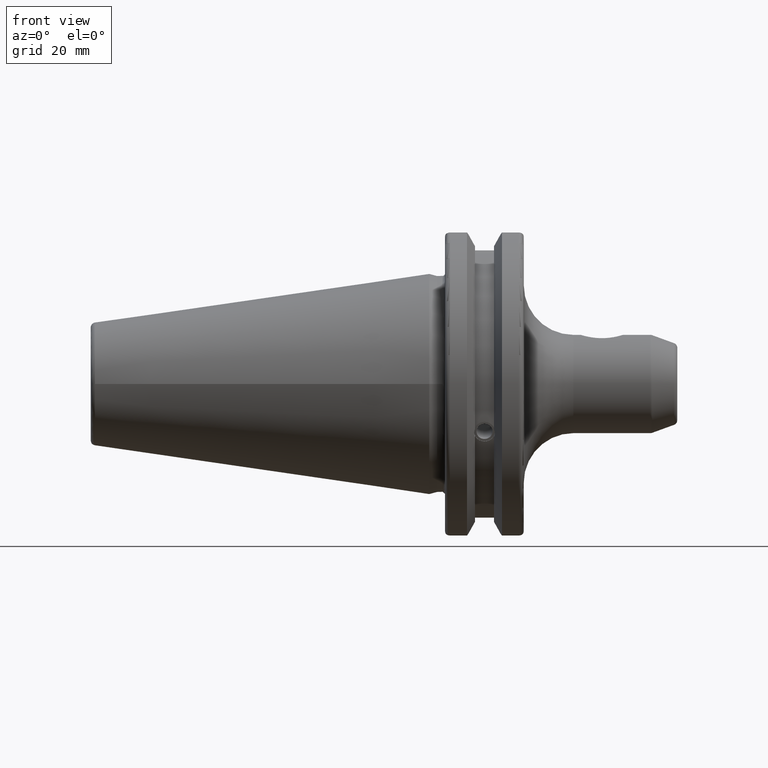
[diagram: clean part render]
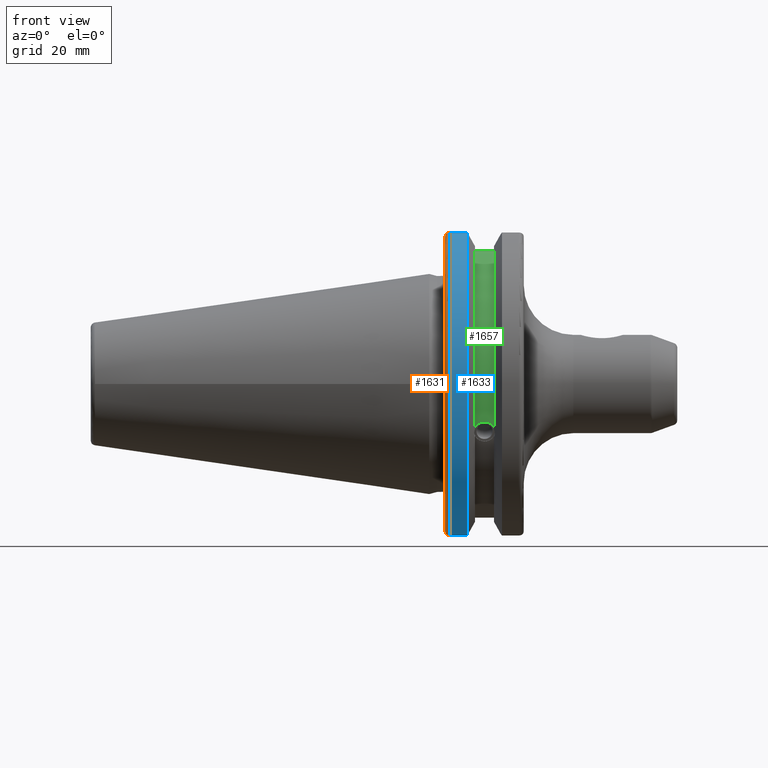
[diagram: same view with three faces highlighted in distinct colors, each labeled with its STEP entity id]
A machine part, front view with three faces highlighted in distinct colors.
Their STEP definitions:

[orange] entity #1631 — the highlighted toroidal blend (fillet) surface has major radius 30.75 mm and minor (blend) radius 1 mm.
#37=TOROIDAL_SURFACE('',#1818,30.75,1.);
#159=CIRCLE('',#1806,30.75);
#164=CIRCLE('',#1819,31.75);
#238=FACE_OUTER_BOUND('',#346,.T.);
#346=EDGE_LOOP('',(#1379,#1380,#1381,#1382,#1383,#1384));
#418=B_SPLINE_CURVE_WITH_KNOTS('',3,(#3129,#3130,#3131,#3132,#3133,#3134),
 .UNSPECIFIED.,.F.,.F.,(4,2,4),(0.0977210450333167,0.111963554372601,0.150804064902975),
 .UNSPECIFIED.);
#419=B_SPLINE_CURVE_WITH_KNOTS('',3,(#3155,#3156,#3157,#3158,#3159,#3160),
 .UNSPECIFIED.,.F.,.F.,(4,2,4),(0.452741154494498,0.491581665024872,0.505824174364157),
 .UNSPECIFIED.);
#420=B_SPLINE_CURVE_WITH_KNOTS('',3,(#3164,#3165,#3166,#3167,#3168,#3169,
#3170,#3171),.UNSPECIFIED.,.F.,.F.,(4,2,2,4),(-0.104180282751877,-0.0729784742461442,
-0.0343524753874977,0.),.UNSPECIFIED.);
#421=B_SPLINE_CURVE_WITH_KNOTS('',3,(#3174,#3175,#3176,#3177,#3178,#3179,
#3180,#3181),.UNSPECIFIED.,.F.,.F.,(4,2,2,4),(0.,0.0343524753874981,0.0729784742461436,
0.104180282751876),.UNSPECIFIED.);
#752=VERTEX_POINT('',#3009);
#753=VERTEX_POINT('',#3010);
#776=VERTEX_POINT('',#3128);
#782=VERTEX_POINT('',#3153);
#783=VERTEX_POINT('',#3163);
#784=VERTEX_POINT('',#3172);
#956=EDGE_CURVE('',#752,#753,#159,.T.);
#988=EDGE_CURVE('',#776,#752,#418,.T.);
#998=EDGE_CURVE('',#753,#782,#419,.T.);
#1000=EDGE_CURVE('',#782,#783,#420,.T.);
#1001=EDGE_CURVE('',#783,#784,#164,.T.);
#1002=EDGE_CURVE('',#784,#776,#421,.T.);
#1379=ORIENTED_EDGE('',*,*,#1000,.T.);
#1380=ORIENTED_EDGE('',*,*,#1001,.T.);
#1381=ORIENTED_EDGE('',*,*,#1002,.T.);
#1382=ORIENTED_EDGE('',*,*,#988,.T.);
#1383=ORIENTED_EDGE('',*,*,#956,.T.);
#1384=ORIENTED_EDGE('',*,*,#998,.T.);
#1631=ADVANCED_FACE('',(#238),#37,.T.);
#1806=AXIS2_PLACEMENT_3D('',#3011,#2159,#2160);
#1818=AXIS2_PLACEMENT_3D('',#3162,#2207,#2208);
#1819=AXIS2_PLACEMENT_3D('',#3173,#2209,#2210);
#2159=DIRECTION('center_axis',(1.,0.,0.));
#2160=DIRECTION('ref_axis',(0.,-1.,1.60812264967664E-16));
#2207=DIRECTION('center_axis',(1.,0.,0.));
#2208=DIRECTION('ref_axis',(0.,0.,-1.));
#2209=DIRECTION('center_axis',(-1.,0.,0.));
#2210=DIRECTION('ref_axis',(0.,-1.,1.60812264967664E-16));
#3009=CARTESIAN_POINT('',(3.175,-8.18999999999999,29.6392712461019));
#3010=CARTESIAN_POINT('',(3.175,-8.19,-29.6392712461019));
#3011=CARTESIAN_POINT('Origin',(3.175,0.,0.));
#3128=CARTESIAN_POINT('',(3.31912772509028,-8.19,30.1755016258903));
#3129=CARTESIAN_POINT('Ctrl Pts',(3.31912772509028,-8.19,30.1755016258903));
#3130=CARTESIAN_POINT('Ctrl Pts',(3.29318362718666,-8.19,30.131014531546));
#3131=CARTESIAN_POINT('Ctrl Pts',(3.27103565282437,-8.19,30.0852355256475));
#3132=CARTESIAN_POINT('Ctrl Pts',(3.20451443291695,-8.19,29.9212724384851));
#3133=CARTESIAN_POINT('Ctrl Pts',(3.175,-8.19,29.7687396145364));
#3134=CARTESIAN_POINT('Ctrl Pts',(3.175,-8.19,29.6392712461019));
#3153=CARTESIAN_POINT('',(3.31912772509028,-8.19,-30.1755016258903));
#3155=CARTESIAN_POINT('Ctrl Pts',(3.175,-8.19,-29.6392712461018));
#3156=CARTESIAN_POINT('Ctrl Pts',(3.175,-8.19,-29.7687396145364));
#3157=CARTESIAN_POINT('Ctrl Pts',(3.20451443291695,-8.19,-29.9212724384851));
#3158=CARTESIAN_POINT('Ctrl Pts',(3.27103565282437,-8.19,-30.0852355256475));
#3159=CARTESIAN_POINT('Ctrl Pts',(3.29318362718666,-8.19,-30.131014531546));
#3160=CARTESIAN_POINT('Ctrl Pts',(3.31912772509028,-8.19,-30.1755016258903));
#3162=CARTESIAN_POINT('Origin',(4.175,0.,0.));
#3163=CARTESIAN_POINT('',(4.175,-8.67204822802685,-30.5427254764662));
#3164=CARTESIAN_POINT('Ctrl Pts',(3.31912772509028,-8.19,-30.1755016258903));
#3165=CARTESIAN_POINT('Ctrl Pts',(3.36755369570113,-8.27036828330781,-30.2367261024977));
#3166=CARTESIAN_POINT('Ctrl Pts',(3.43232973376814,-8.34909446036477,-30.2966996242308));
#3167=CARTESIAN_POINT('Ctrl Pts',(3.58532758094931,-8.48862804755884,-30.4029961692546));
#3168=CARTESIAN_POINT('Ctrl Pts',(3.70655857052286,-8.56482138642532,-30.4610401774263));
#3169=CARTESIAN_POINT('Ctrl Pts',(3.92668295662254,-8.6471881193939,-30.5237870709558));
#3170=CARTESIAN_POINT('Ctrl Pts',(4.06049174870834,-8.67204822802686,-30.5427254764662));
#3171=CARTESIAN_POINT('Ctrl Pts',(4.175,-8.67204822802686,-30.5427254764662));
#3172=CARTESIAN_POINT('',(4.175,-8.67204822802685,30.5427254764662));
#3173=CARTESIAN_POINT('Origin',(4.175,0.,0.));
#3174=CARTESIAN_POINT('Ctrl Pts',(4.175,-8.67204822802686,30.5427254764662));
#3175=CARTESIAN_POINT('Ctrl Pts',(4.06049174870834,-8.67204822802686,30.5427254764662));
#3176=CARTESIAN_POINT('Ctrl Pts',(3.92668295662254,-8.64718811939389,30.5237870709558));
#3177=CARTESIAN_POINT('Ctrl Pts',(3.70655857052286,-8.56482138642532,30.4610401774263));
#3178=CARTESIAN_POINT('Ctrl Pts',(3.58532758094931,-8.48862804755884,30.4029961692546));
#3179=CARTESIAN_POINT('Ctrl Pts',(3.43232973376814,-8.34909446036478,30.2966996242308));
#3180=CARTESIAN_POINT('Ctrl Pts',(3.36755369570113,-8.2703682833078,30.2367261024977));
#3181=CARTESIAN_POINT('Ctrl Pts',(3.31912772509028,-8.19,30.1755016258903));

[blue] entity #1633 — the highlighted cylindrical surface (partial cylindrical patch) has radius 31.75 mm, axis along (1, 0, 0).
#164=CIRCLE('',#1819,31.75);
#165=CIRCLE('',#1822,31.75);
#240=FACE_OUTER_BOUND('',#348,.T.);
#348=EDGE_LOOP('',(#1389,#1390,#1391,#1392));
#501=LINE('',#3184,#600);
#502=LINE('',#3190,#601);
#600=VECTOR('',#2213,10.);
#601=VECTOR('',#2216,10.);
#783=VERTEX_POINT('',#3163);
#784=VERTEX_POINT('',#3172);
#785=VERTEX_POINT('',#3183);
#786=VERTEX_POINT('',#3189);
#1001=EDGE_CURVE('',#783,#784,#164,.T.);
#1003=EDGE_CURVE('',#784,#785,#501,.T.);
#1005=EDGE_CURVE('',#786,#783,#502,.T.);
#1006=EDGE_CURVE('',#785,#786,#165,.T.);
#1389=ORIENTED_EDGE('',*,*,#1001,.F.);
#1390=ORIENTED_EDGE('',*,*,#1005,.F.);
#1391=ORIENTED_EDGE('',*,*,#1006,.F.);
#1392=ORIENTED_EDGE('',*,*,#1003,.F.);
#1569=CYLINDRICAL_SURFACE('',#1821,31.75);
#1633=ADVANCED_FACE('',(#240),#1569,.T.);
#1819=AXIS2_PLACEMENT_3D('',#3173,#2209,#2210);
#1821=AXIS2_PLACEMENT_3D('',#3188,#2214,#2215);
#1822=AXIS2_PLACEMENT_3D('',#3191,#2217,#2218);
#2209=DIRECTION('center_axis',(-1.,0.,0.));
#2210=DIRECTION('ref_axis',(0.,-1.,1.60812264967664E-16));
#2213=DIRECTION('',(1.,0.,0.));
#2214=DIRECTION('center_axis',(1.,0.,0.));
#2215=DIRECTION('ref_axis',(0.,-1.,1.22464679914735E-16));
#2216=DIRECTION('',(-1.,0.,0.));
#2217=DIRECTION('center_axis',(1.,0.,0.));
#2218=DIRECTION('ref_axis',(0.,0.,-1.));
#3163=CARTESIAN_POINT('',(4.175,-8.67204822802685,-30.5427254764662));
#3172=CARTESIAN_POINT('',(4.175,-8.67204822802685,30.5427254764662));
#3173=CARTESIAN_POINT('Origin',(4.175,0.,0.));
#3183=CARTESIAN_POINT('',(7.60793323092436,-8.67204822802685,30.5427254764662));
#3184=CARTESIAN_POINT('',(5.39146661546218,-8.67204822802685,30.5427254764662));
#3188=CARTESIAN_POINT('Origin',(5.39146661546218,0.,0.));
#3189=CARTESIAN_POINT('',(7.60793323092436,-8.67204822802685,-30.5427254764662));
#3190=CARTESIAN_POINT('',(5.39146661546218,-8.67204822802685,-30.5427254764662));
#3191=CARTESIAN_POINT('Origin',(7.60793323092436,0.,0.));

[green] entity #1657 — the highlighted cylindrical surface (partial cylindrical patch) has radius 28.15 mm, axis along (1, 0, 0).
#178=CIRCLE('',#1859,28.15);
#179=CIRCLE('',#1860,28.15);
#264=FACE_OUTER_BOUND('',#373,.T.);
#373=EDGE_LOOP('',(#1494,#1495,#1496,#1497));
#400=B_SPLINE_CURVE_WITH_KNOTS('',3,(#2743,#2744,#2745,#2746,#2747,#2748,
#2749,#2750,#2751,#2752,#2753,#2754,#2755,#2756),.UNSPECIFIED.,.F.,.F.,
(4,2,2,2,2,2,4),(0.401639126382403,0.474814416953736,0.553950208498303,
0.63308600004287,0.712221791587437,0.791357583132004,0.864532873703336),
 .UNSPECIFIED.);
#495=LINE('',#3144,#594);
#594=VECTOR('',#2199,10.);
#700=VERTEX_POINT('',#2740);
#701=VERTEX_POINT('',#2742);
#779=VERTEX_POINT('',#3141);
#780=VERTEX_POINT('',#3143);
#883=EDGE_CURVE('',#701,#700,#400,.T.);
#992=EDGE_CURVE('',#780,#779,#495,.T.);
#1043=EDGE_CURVE('',#780,#700,#178,.T.);
#1044=EDGE_CURVE('',#779,#701,#179,.T.);
#1494=ORIENTED_EDGE('',*,*,#883,.T.);
#1495=ORIENTED_EDGE('',*,*,#1043,.F.);
#1496=ORIENTED_EDGE('',*,*,#992,.T.);
#1497=ORIENTED_EDGE('',*,*,#1044,.T.);
#1575=CYLINDRICAL_SURFACE('',#1858,28.15);
#1657=ADVANCED_FACE('',(#264),#1575,.T.);
#1858=AXIS2_PLACEMENT_3D('',#3292,#2307,#2308);
#1859=AXIS2_PLACEMENT_3D('',#3293,#2309,#2310);
#1860=AXIS2_PLACEMENT_3D('',#3294,#2311,#2312);
#2199=DIRECTION('',(-1.,0.,0.));
#2307=DIRECTION('center_axis',(1.,0.,0.));
#2308=DIRECTION('ref_axis',(0.,-0.887654187951484,0.46051063246378));
#2309=DIRECTION('center_axis',(1.,0.,0.));
#2310=DIRECTION('ref_axis',(0.,0.,-1.));
#2311=DIRECTION('center_axis',(1.,0.,0.));
#2312=DIRECTION('ref_axis',(0.,0.,-1.));
#2740=CARTESIAN_POINT('',(13.0491,-26.734714844398,-8.81348524641211));
#2742=CARTESIAN_POINT('',(9.2191,-26.734714844398,-8.81348524641212));
#2743=CARTESIAN_POINT('Ctrl Pts',(9.2191,-26.734714844398,-8.81348524641212));
#2744=CARTESIAN_POINT('Ctrl Pts',(9.32533057097183,-26.8086519721597,-8.58920529678291));
#2745=CARTESIAN_POINT('Ctrl Pts',(9.47682013770509,-26.8729987454904,-8.38416529997369));
#2746=CARTESIAN_POINT('Ctrl Pts',(9.83557062657411,-26.9778908791383,-8.04056861831091));
#2747=CARTESIAN_POINT('Ctrl Pts',(10.0716450112988,-27.0233016799732,-7.88512567185902));
#2748=CARTESIAN_POINT('Ctrl Pts',(10.5890125426388,-27.0826966800569,-7.6786444840004));
#2749=CARTESIAN_POINT('Ctrl Pts',(10.8703140281848,-27.0968804077294,-7.62768458768512));
#2750=CARTESIAN_POINT('Ctrl Pts',(11.3978859718152,-27.0968804077294,-7.62768458768512));
#2751=CARTESIAN_POINT('Ctrl Pts',(11.6791874573612,-27.0826966800569,-7.6786444840004));
#2752=CARTESIAN_POINT('Ctrl Pts',(12.1965549887012,-27.0233016799732,-7.88512567185902));
#2753=CARTESIAN_POINT('Ctrl Pts',(12.4326293734259,-26.9778908791383,-8.04056861831091));
#2754=CARTESIAN_POINT('Ctrl Pts',(12.7913798622949,-26.8729987454904,-8.38416529997369));
#2755=CARTESIAN_POINT('Ctrl Pts',(12.9428694290282,-26.8086519721597,-8.5892052967829));
#2756=CARTESIAN_POINT('Ctrl Pts',(13.0491,-26.734714844398,-8.81348524641211));
#3141=CARTESIAN_POINT('',(9.2191,-8.19,26.932255754021));
#3143=CARTESIAN_POINT('',(13.0491,-8.19,26.932255754021));
#3144=CARTESIAN_POINT('',(11.1341,-8.19,26.932255754021));
#3292=CARTESIAN_POINT('Origin',(11.1341,0.,0.));
#3293=CARTESIAN_POINT('Origin',(13.0491,0.,0.));
#3294=CARTESIAN_POINT('Origin',(9.2191,0.,0.));